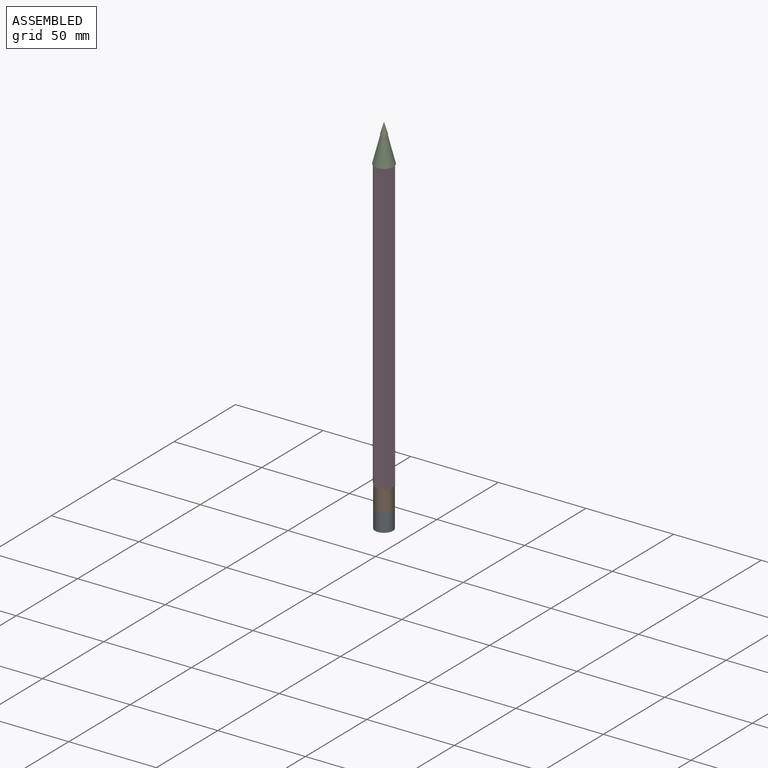
[diagram: assembled view]
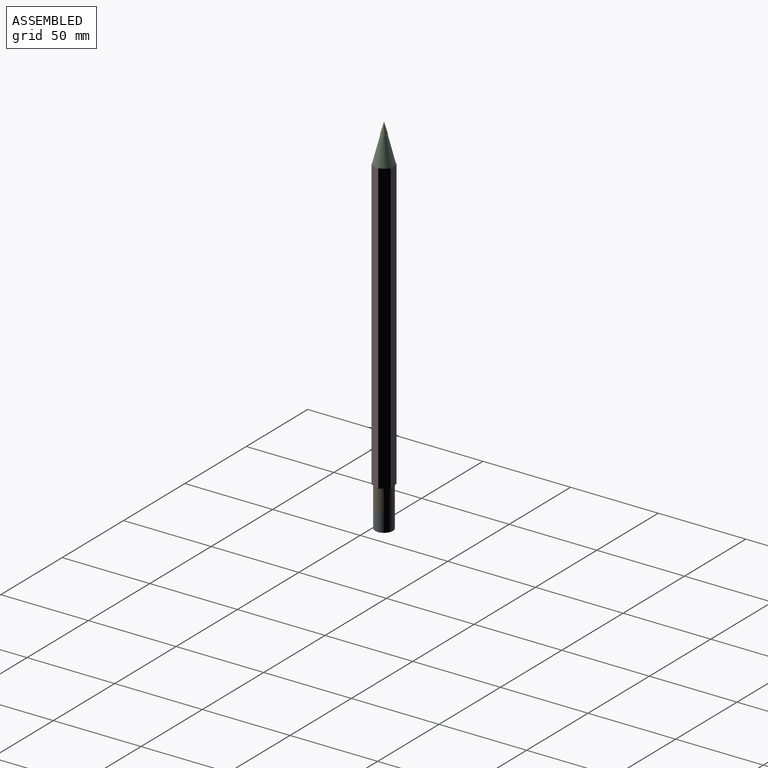
[diagram: assembled view, second angle]
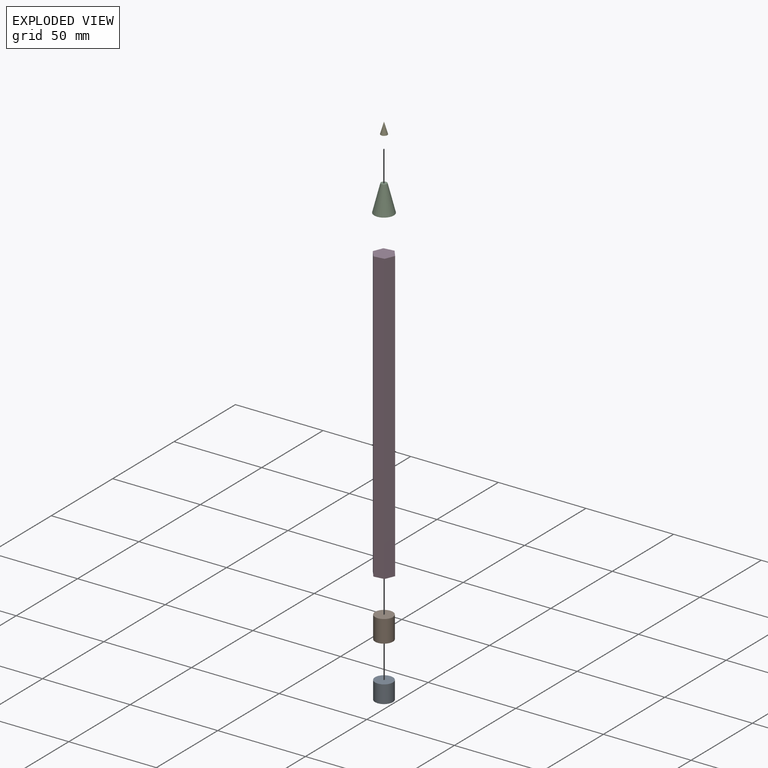
[diagram: exploded view]
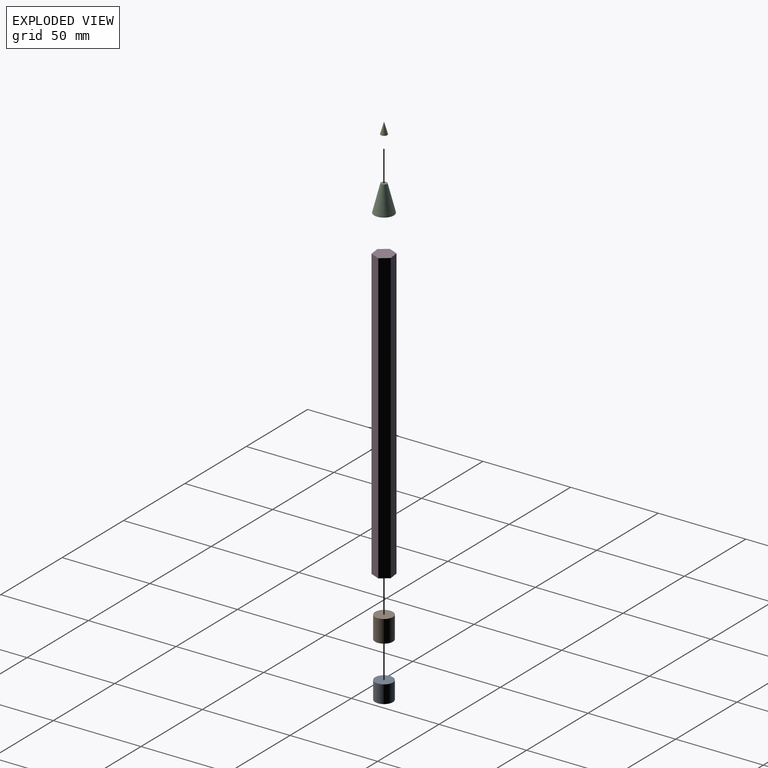
[diagram: exploded view, second angle]
ASSEMBLY  parts=5 mates=4
PART A: 3 faces, bbox 10.2x10.2x10.2 mm
  f0: cylinder r=5.08mm len=10.16mm, axis (0,0,-1), area 324.3mm2, adj f1,f2
  f1: plane 10.16x10.16mm, normal (0,0,1), area 81.1mm2, adj f0
  f2: plane 10.16x10.16mm, normal (0,0,-1), area 81.1mm2, adj f0
PART B: 3 faces, bbox 10.2x10.2x12.7 mm
  f0: cylinder r=5.08mm len=12.7mm, axis (0,0,-1), area 405.4mm2, adj f1,f2
  f1: plane 10.16x10.16mm, normal (0,0,1), area 81.1mm2, adj f0
  f2: plane 10.16x10.16mm, normal (0,0,-1), area 81.1mm2, adj f0
PART C: 3 faces, bbox 11.2x15.2x11.2 mm
  f0: plane 11.18x11.18mm, normal (0,-1,0), area 98.1mm2, adj f1
  f1: cone r=1.69mm half-angle=14.3deg, axis (0,-1,0), area 359.8mm2, adj f0,f2
  f2: plane 3.39x3.39mm, normal (0,1,0), area 9mm2, adj f1
PART D: 8 faces, bbox 11.6x10.8x165.1 mm
  f0: plane 165.1x5.82mm, normal (0.13,-0.99,0), area 968.5mm2, adj f1,f5,f6,f7
  f1: plane 165.1x5.42mm, normal (0.92,-0.38,0), area 968.5mm2, adj f0,f2,f6,f7
  f2: plane 165.1x4.66mm, normal (0.79,0.61,0), area 968.5mm2, adj f1,f3,f6,f7
  f3: plane 165.1x5.82mm, normal (-0.13,0.99,0), area 968.5mm2, adj f2,f4,f6,f7
  f4: plane 165.1x5.42mm, normal (-0.92,0.38,0), area 968.5mm2, adj f3,f5,f6,f7
  f5: plane 165.1x4.66mm, normal (-0.79,-0.61,0), area 968.5mm2, adj f0,f4,f6,f7
  f6: plane 11.63x10.83mm, normal (0,0,1), area 89.4mm2, adj f0,f1,f2,f3,f4,f5
  f7: plane 11.63x10.83mm, normal (0,0,-1), area 89.4mm2, adj f0,f1,f2,f3,f4,f5
PART E: 2 faces, bbox 3.8x6.8x3.8 mm
  f0: cone r=1.91mm half-angle=48.6deg, axis (0.17,-0.99,0), area 15.2mm2, adj f1
  f1: cone r=0mm half-angle=16.3deg, axis (0.17,-0.99,0), area 40.7mm2, adj f0
PLACE A t=(-52.16,-32.87,-109.54)mm
PLACE B t=(-52.16,-32.87,-99.38)mm
PLACE C rot(axis=(0,0.71,0.71),180deg) t=(-52.16,-32.87,78.42)mm
PLACE D t=(-52.16,-32.87,-86.68)mm
PLACE E rot(axis=(0.99,0.08,-0.08),90.4deg) t=(-52.16,-32.87,95.34)mm
MATE cylindrical C.f1 <-> D.f6  axis (0,0,-1) through (-52.16,-32.87,78.42)mm
MATE cylindrical E.f0 <-> C.f1  axis (0,0,-1) through (-52.16,-32.87,94.5)mm
MATE pin_slot A.f0 <-> B.f0  axis (0,0,1) through (-52.16,-32.87,-99.38)mm
MATE pin_slot B.f0 <-> D.f7  axis (0,0,1) through (-52.16,-32.87,-86.68)mm
